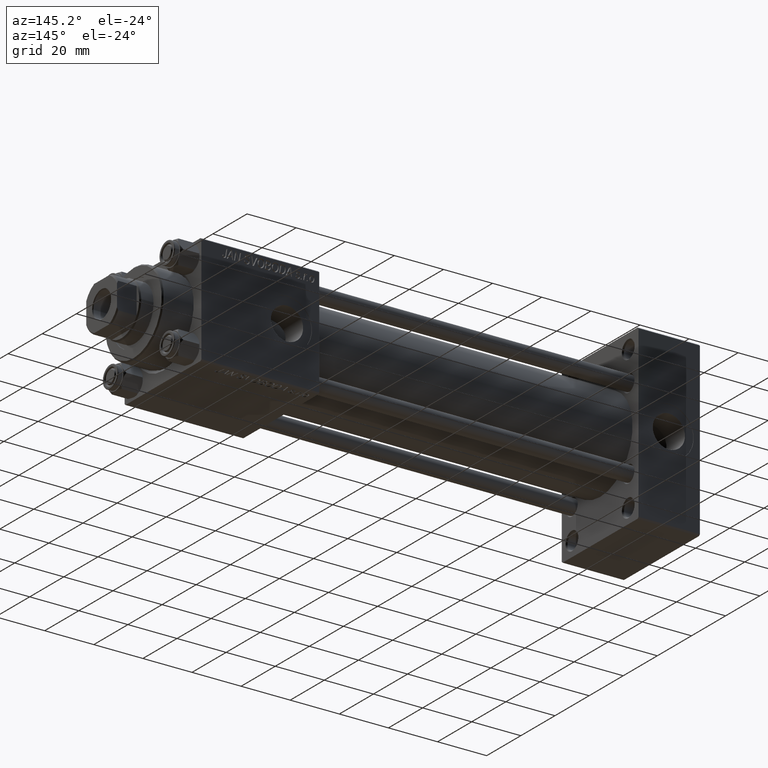
[diagram: clean part render]
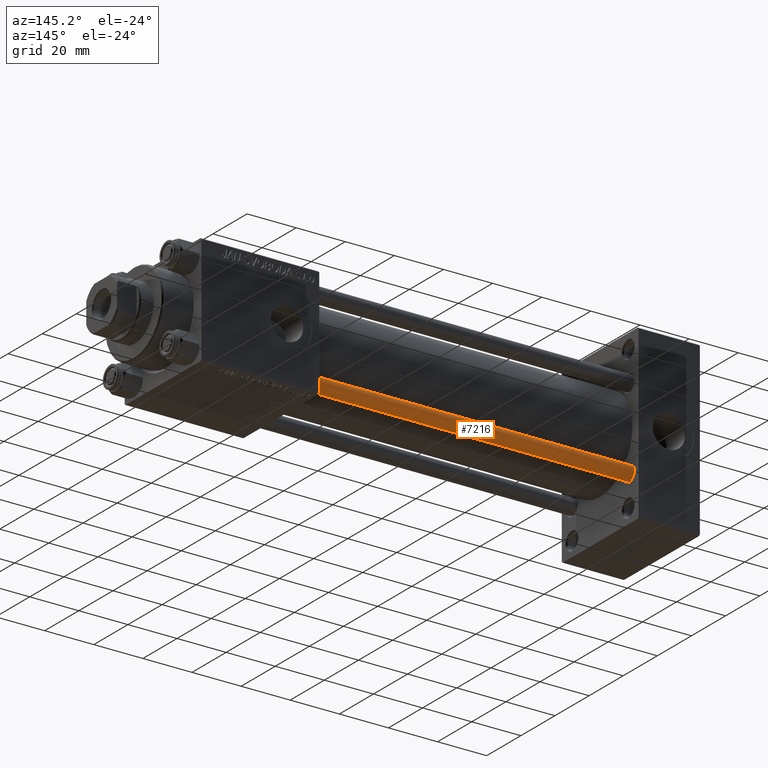
[diagram: same view with one face highlighted and labeled with its STEP entity id]
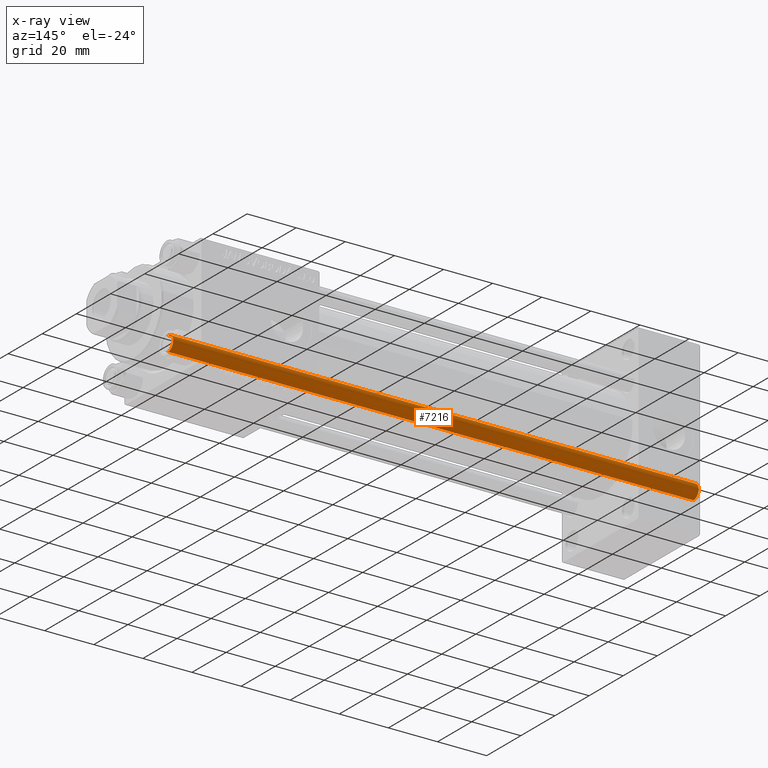
[diagram: x-ray of the same camera — body ghosted, the highlighted face saturated]
A machine part, auxiliary view. The second image highlights one B-rep face of the part: STEP entity #7216.
The next image is the same camera in x-ray: the body ghosted, the highlighted face saturated — about 0% of this face is hidden behind the body in this view.
In plain terms, the highlighted cylindrical surface (edge-blend (fillet) strip) has radius 3 mm, axis along (-1, 0, 0).
Its self-contained STEP definition (entity closure, byte-faithful):
#3037 = DIRECTION ( 'NONE',  ( -0.000000000000000000, -0.000000000000000000, -1.000000000000000000 ) ) ;
#6605 = CARTESIAN_POINT ( 'NONE',  ( 0.000000000000000000, 0.000000000000000000, 215.0000000000000000 ) ) ;
#6684 = DIRECTION ( 'NONE',  ( -0.000000000000000000, -0.000000000000000000, -1.000000000000000000 ) ) ;
#7216 = ADVANCED_FACE ( 'NONE', ( #9639 ), #21526, .T. ) ;
#7226 = AXIS2_PLACEMENT_3D ( 'NONE', #48683, #14097, #44897 ) ;
#8604 = DIRECTION ( 'NONE',  ( -0.000000000000000000, -0.000000000000000000, 1.000000000000000000 ) ) ;
#9639 = FACE_OUTER_BOUND ( 'NONE', #12552, .T. ) ;
#10090 = ORIENTED_EDGE ( 'NONE', *, *, #45320, .T. ) ;
#11274 = CARTESIAN_POINT ( 'NONE',  ( -3.000000000000000444, 0.000000000000000000, 214.5000000000000000 ) ) ;
#12552 = EDGE_LOOP ( 'NONE', ( #44920, #10090, #38880, #41918 ) ) ;
#13084 = AXIS2_PLACEMENT_3D ( 'NONE', #6605, #3037, #15435 ) ;
#14097 = DIRECTION ( 'NONE',  ( 0.000000000000000000, 0.000000000000000000, -1.000000000000000000 ) ) ;
#15435 = DIRECTION ( 'NONE',  ( -1.000000000000000000, 0.000000000000000000, 0.000000000000000000 ) ) ;
#16069 = CARTESIAN_POINT ( 'NONE',  ( -3.000000000000000444, 0.000000000000000000, 215.0000000000000000 ) ) ;
#16910 = AXIS2_PLACEMENT_3D ( 'NONE', #38940, #8604, #19489 ) ;
#18735 = CARTESIAN_POINT ( 'NONE',  ( 3.000000000000000444, 3.673940397442060361E-16, 214.5000000000000000 ) ) ;
#19489 = DIRECTION ( 'NONE',  ( 1.000000000000000000, 0.000000000000000000, 0.000000000000000000 ) ) ;
#21526 = CYLINDRICAL_SURFACE ( 'NONE', #13084, 3.000000000000000444 ) ;
#23577 = VECTOR ( 'NONE', #41048, 1000.000000000000000 ) ;
#25632 = CARTESIAN_POINT ( 'NONE',  ( 3.000000000000000444, 3.673940397442060361E-16, 215.0000000000000000 ) ) ;
#26756 = VECTOR ( 'NONE', #6684, 1000.000000000000000 ) ;
#29425 = LINE ( 'NONE', #25632, #23577 ) ;
#30942 = VERTEX_POINT ( 'NONE', #18735 ) ;
#31385 = VERTEX_POINT ( 'NONE', #46431 ) ;
#31845 = EDGE_CURVE ( 'NONE', #42911, #41478, #47868, .T. ) ;
#37491 = EDGE_CURVE ( 'NONE', #30942, #31385, #29425, .T. ) ;
#38671 = CIRCLE ( 'NONE', #16910, 3.000000000000000444 ) ;
#38702 = CIRCLE ( 'NONE', #7226, 3.000000000000000444 ) ;
#38880 = ORIENTED_EDGE ( 'NONE', *, *, #31845, .T. ) ;
#38940 = CARTESIAN_POINT ( 'NONE',  ( 0.000000000000000000, 0.000000000000000000, 0.5000000000000559552 ) ) ;
#41048 = DIRECTION ( 'NONE',  ( -0.000000000000000000, -0.000000000000000000, -1.000000000000000000 ) ) ;
#41478 = VERTEX_POINT ( 'NONE', #41720 ) ;
#41720 = CARTESIAN_POINT ( 'NONE',  ( -3.000000000000000444, 0.000000000000000000, 0.5000000000000559552 ) ) ;
#41918 = ORIENTED_EDGE ( 'NONE', *, *, #44707, .T. ) ;
#42911 = VERTEX_POINT ( 'NONE', #11274 ) ;
#44707 = EDGE_CURVE ( 'NONE', #41478, #31385, #38671, .T. ) ;
#44897 = DIRECTION ( 'NONE',  ( 1.000000000000000000, 0.000000000000000000, 0.000000000000000000 ) ) ;
#44920 = ORIENTED_EDGE ( 'NONE', *, *, #37491, .F. ) ;
#45320 = EDGE_CURVE ( 'NONE', #30942, #42911, #38702, .T. ) ;
#46431 = CARTESIAN_POINT ( 'NONE',  ( 3.000000000000000444, 3.673940397442060361E-16, 0.5000000000000559552 ) ) ;
#47868 = LINE ( 'NONE', #16069, #26756 ) ;
#48683 = CARTESIAN_POINT ( 'NONE',  ( 0.000000000000000000, 0.000000000000000000, 214.5000000000000000 ) ) ;